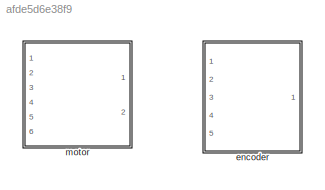
MODEL slx_afde5d6e38f9
KIND library
CONFIG AbsTol = auto
CONFIG EnableMultiTasking = off
CONFIG FixedStep = auto
CONFIG MaxStep = auto
CONFIG MinStep = auto
CONFIG RelTol = 1e-3
CONFIG SampleTimeConstraint = Unconstrained
CONFIG Solver = VariableStepAuto
CONFIG SolverName = VariableStepAuto
CONFIG StartTime = 0.0
CONFIG StopTime = 10.0
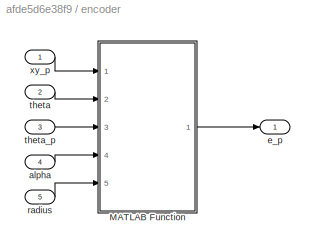
BLOCK [SubSystem] encoder
  Ports = [5, 1]
  RequestExecContextInheritance = off
  Variant = off
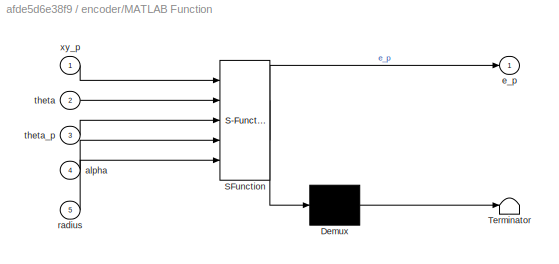
BLOCK [SubSystem] encoder/MATLAB Function
  ErrorFcn = Stateflow.Translate.translate
  PermitHierarchicalResolution = ExplicitOnly
  Ports = [5, 1]
  RequestExecContextInheritance = off
  SFBlockType = MATLAB Function
  TreatAsAtomicUnit = on
  Variant = off
BLOCK [Demux] encoder/MATLAB Function/ Demux 
  Outputs = 1
  Ports = [1, 1]
BLOCK [S-Function] encoder/MATLAB Function/ SFunction 
  EnableBusSupport = off
  FunctionName = sf_sfun
  PortCounts = [5 2]
  Ports = [5, 2]
  SFcnIsStateOwnerBlock = off
  SFunctionDeploymentMode = off
  Tag = Stateflow S-Function galipeur_lib 1
BLOCK [Terminator] encoder/MATLAB Function/ Terminator 
BLOCK [Inport] encoder/MATLAB Function/alpha
  IconDisplay = Port number
  Port = 4
BLOCK [Outport] encoder/MATLAB Function/e_p
  IconDisplay = Port number
BLOCK [Inport] encoder/MATLAB Function/radius
  IconDisplay = Port number
  Port = 5
BLOCK [Inport] encoder/MATLAB Function/theta
  IconDisplay = Port number
  Port = 2
BLOCK [Inport] encoder/MATLAB Function/theta_p
  IconDisplay = Port number
  Port = 3
BLOCK [Inport] encoder/MATLAB Function/xy_p
  IconDisplay = Port number
BLOCK [Inport] encoder/alpha
  IconDisplay = Port number
  Port = 4
BLOCK [Outport] encoder/e_p
  IconDisplay = Port number
BLOCK [Inport] encoder/radius
  IconDisplay = Port number
  Port = 5
BLOCK [Inport] encoder/theta
  IconDisplay = Port number
  Port = 2
BLOCK [Inport] encoder/theta_p
  IconDisplay = Port number
  Port = 3
BLOCK [Inport] encoder/xy_p
  IconDisplay = Port number
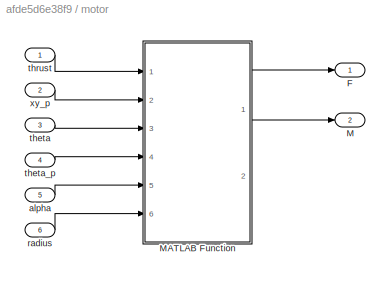
BLOCK [SubSystem] motor
  Ports = [6, 2]
  RequestExecContextInheritance = off
  Variant = off
BLOCK [Outport] motor/F
  IconDisplay = Port number
BLOCK [Outport] motor/M
  IconDisplay = Port number
  Port = 2
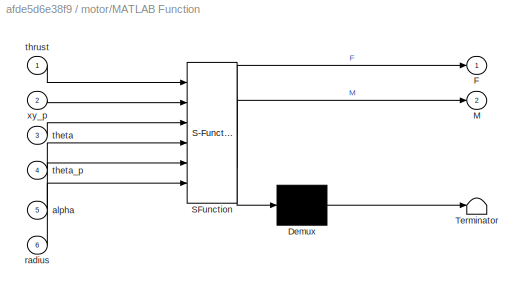
BLOCK [SubSystem] motor/MATLAB Function
  ErrorFcn = Stateflow.Translate.translate
  PermitHierarchicalResolution = ExplicitOnly
  Ports = [6, 2]
  RequestExecContextInheritance = off
  SFBlockType = MATLAB Function
  TreatAsAtomicUnit = on
  Variant = off
BLOCK [Demux] motor/MATLAB Function/ Demux 
  Outputs = 1
  Ports = [1, 1]
BLOCK [S-Function] motor/MATLAB Function/ SFunction 
  EnableBusSupport = off
  FunctionName = sf_sfun
  PortCounts = [6 3]
  Ports = [6, 3]
  SFcnIsStateOwnerBlock = off
  SFunctionDeploymentMode = off
  Tag = Stateflow S-Function galipeur_lib 2
BLOCK [Terminator] motor/MATLAB Function/ Terminator 
BLOCK [Outport] motor/MATLAB Function/F
  IconDisplay = Port number
BLOCK [Outport] motor/MATLAB Function/M
  IconDisplay = Port number
  Port = 2
BLOCK [Inport] motor/MATLAB Function/alpha
  IconDisplay = Port number
  Port = 5
BLOCK [Inport] motor/MATLAB Function/radius
  IconDisplay = Port number
  Port = 6
BLOCK [Inport] motor/MATLAB Function/theta
  IconDisplay = Port number
  Port = 3
BLOCK [Inport] motor/MATLAB Function/theta_p
  IconDisplay = Port number
  Port = 4
BLOCK [Inport] motor/MATLAB Function/thrust
  IconDisplay = Port number
BLOCK [Inport] motor/MATLAB Function/xy_p
  IconDisplay = Port number
  Port = 2
BLOCK [Inport] motor/alpha
  IconDisplay = Port number
  Port = 5
BLOCK [Inport] motor/radius
  IconDisplay = Port number
  Port = 6
BLOCK [Inport] motor/theta
  IconDisplay = Port number
  Port = 3
BLOCK [Inport] motor/theta_p
  IconDisplay = Port number
  Port = 4
BLOCK [Inport] motor/thrust
  IconDisplay = Port number
BLOCK [Inport] motor/xy_p
  IconDisplay = Port number
  Port = 2
LINE encoder/MATLAB Function:1 -> encoder/e_p:1
LINE encoder/alpha:1 -> encoder/MATLAB Function:4
LINE encoder/radius:1 -> encoder/MATLAB Function:5
LINE encoder/theta:1 -> encoder/MATLAB Function:2
LINE encoder/theta_p:1 -> encoder/MATLAB Function:3
LINE encoder/xy_p:1 -> encoder/MATLAB Function:1
LINE motor/MATLAB Function:1 -> motor/F:1
LINE motor/MATLAB Function:2 -> motor/M:1
LINE motor/alpha:1 -> motor/MATLAB Function:5
LINE motor/radius:1 -> motor/MATLAB Function:6
LINE motor/theta:1 -> motor/MATLAB Function:3
LINE motor/theta_p:1 -> motor/MATLAB Function:4
LINE motor/thrust:1 -> motor/MATLAB Function:1
LINE motor/xy_p:1 -> motor/MATLAB Function:2
CHART encoder/MATLAB Function states=1 transitions=1
  STATE_LABEL 'eML_blk_kernel()'
  STATE_LABEL 'SCRIPT:\nfunction e_p = fcn(xy_p,theta,theta_p,alpha,radius)\n% xy_p: robot velocity in ground reference (xp, yp)\n% alpha: motor orientation placement relative to robot\n% radius: motor distance from robot CG relative to robot\n% theta: robot orientation relative to ground\n% theta_p: robot rotation speed\n\n% compute unitary vector perpendicular to thrust\nup = [cos(theta+alpha); sin(theta+alpha)];\n% com...<+206ch>'
CHART motor/MATLAB Function states=1 transitions=1
  STATE_LABEL 'eML_blk_kernel()'
  STATE_LABEL 'SCRIPT:\nfunction [F,M]= fcn(thrust, xy_p, theta, theta_p, alpha, radius)\n% thrust: motor thrust in N at contact\n% xy_p: robot velocity in ground reference (xp, yp)\n% alpha: motor orientation placement relative to robot\n% radius: motor distance from robot CG relative to robot\n% theta: robot orientation relative to ground\n% theta_p: robot rotation speed\n\n% compute unitary vector perpendicular to thr...<+552ch>'
